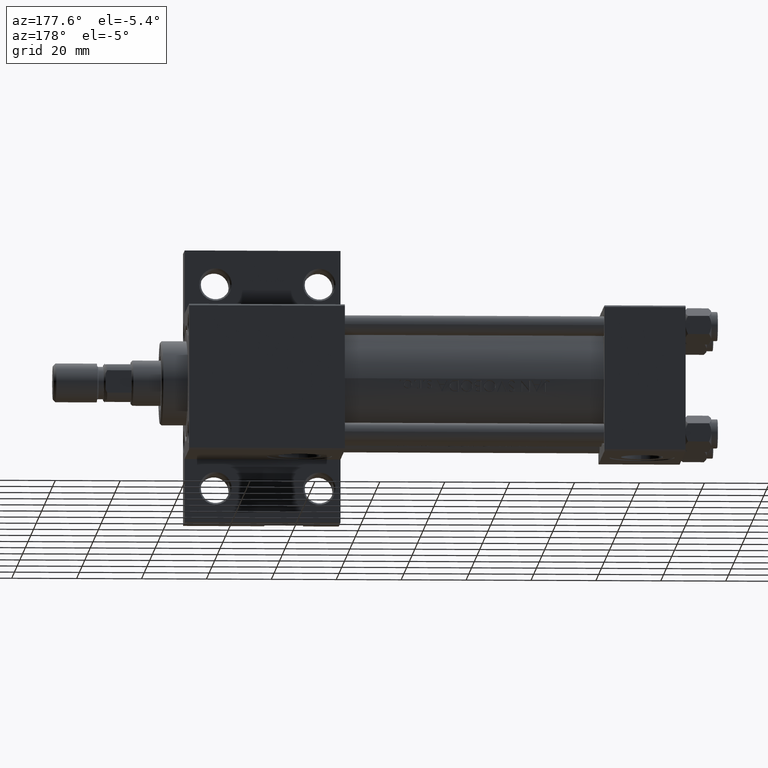
[diagram: clean part render]
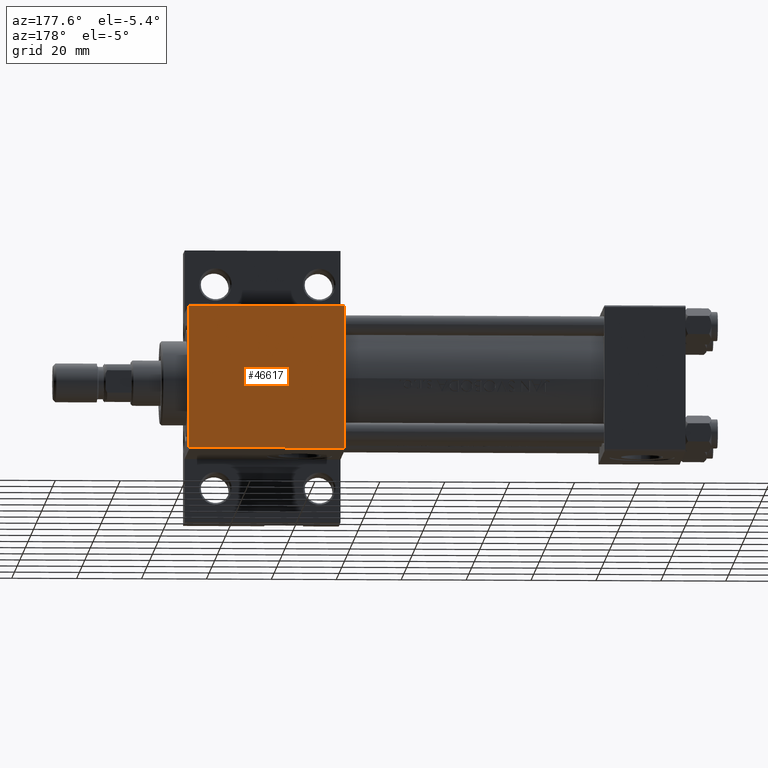
[diagram: same view with one face highlighted and labeled with its STEP entity id]
A machine part, auxiliary view. The second image highlights one B-rep face of the part: STEP entity #46617.
In plain terms, the highlighted planar face has unit normal (0, -1, -0).
Its self-contained STEP definition (entity closure, byte-faithful):
#446 = DIRECTION ( 'NONE',  ( 0.000000000000000000, -1.000000000000000000, -2.312964634635742957E-16 ) ) ;
#2039 = VERTEX_POINT ( 'NONE', #38056 ) ;
#3947 = EDGE_CURVE ( 'NONE', #42545, #2039, #11522, .T. ) ;
#6787 = CARTESIAN_POINT ( 'NONE',  ( 105.0000000000000142, 22.50000000000000355, 22.50000000000000355 ) ) ;
#10081 = ORIENTED_EDGE ( 'NONE', *, *, #3947, .T. ) ;
#10678 = LINE ( 'NONE', #6787, #11482 ) ;
#11425 = DIRECTION ( 'NONE',  ( 0.000000000000000000, 2.312964634635742957E-16, -1.000000000000000000 ) ) ;
#11482 = VECTOR ( 'NONE', #446, 1000.000000000000000 ) ;
#11522 = LINE ( 'NONE', #37107, #30030 ) ;
#12988 = EDGE_CURVE ( 'NONE', #42545, #32532, #45233, .T. ) ;
#13113 = VERTEX_POINT ( 'NONE', #17425 ) ;
#15379 = DIRECTION ( 'NONE',  ( 1.000000000000000000, 0.000000000000000000, 0.000000000000000000 ) ) ;
#17425 = CARTESIAN_POINT ( 'NONE',  ( 105.0000000000000142, -21.99999999999995381, 22.49999999999999289 ) ) ;
#17856 = VECTOR ( 'NONE', #47248, 1000.000000000000000 ) ;
#18262 = CARTESIAN_POINT ( 'NONE',  ( 153.0000000000000284, 22.50000000000000355, 22.50000000000000355 ) ) ;
#21968 = LINE ( 'NONE', #22690, #38298 ) ;
#22690 = CARTESIAN_POINT ( 'NONE',  ( 153.0000000000000284, -21.99999999999996803, 22.49999999999999289 ) ) ;
#23443 = AXIS2_PLACEMENT_3D ( 'NONE', #37735, #11425, #44314 ) ;
#24726 = EDGE_CURVE ( 'NONE', #13113, #32532, #21968, .T. ) ;
#29451 = PLANE ( 'NONE',  #23443 ) ;
#30030 = VECTOR ( 'NONE', #33704, 1000.000000000000000 ) ;
#31418 = CARTESIAN_POINT ( 'NONE',  ( 153.0000000000000284, -21.99999999999995381, 22.49999999999999289 ) ) ;
#32532 = VERTEX_POINT ( 'NONE', #31418 ) ;
#33704 = DIRECTION ( 'NONE',  ( -1.000000000000000000, 0.000000000000000000, 0.000000000000000000 ) ) ;
#34471 = EDGE_CURVE ( 'NONE', #2039, #13113, #10678, .T. ) ;
#37107 = CARTESIAN_POINT ( 'NONE',  ( 105.0000000000000142, 22.00000000000000355, 22.50000000000000355 ) ) ;
#37735 = CARTESIAN_POINT ( 'NONE',  ( 153.0000000000000284, 22.50000000000000355, 22.50000000000000355 ) ) ;
#38056 = CARTESIAN_POINT ( 'NONE',  ( 105.0000000000000142, 22.00000000000000355, 22.50000000000000355 ) ) ;
#38298 = VECTOR ( 'NONE', #15379, 1000.000000000000000 ) ;
#41147 = FACE_OUTER_BOUND ( 'NONE', #46498, .T. ) ;
#42540 = CARTESIAN_POINT ( 'NONE',  ( 153.0000000000000284, 22.00000000000000355, 22.50000000000000355 ) ) ;
#42545 = VERTEX_POINT ( 'NONE', #42540 ) ;
#42611 = ORIENTED_EDGE ( 'NONE', *, *, #34471, .T. ) ;
#43799 = ORIENTED_EDGE ( 'NONE', *, *, #24726, .T. ) ;
#44314 = DIRECTION ( 'NONE',  ( 0.000000000000000000, 1.000000000000000000, 2.312964634635742957E-16 ) ) ;
#45233 = LINE ( 'NONE', #18262, #17856 ) ;
#46498 = EDGE_LOOP ( 'NONE', ( #47706, #10081, #42611, #43799 ) ) ;
#46617 = ADVANCED_FACE ( 'NONE', ( #41147 ), #29451, .F. ) ;
#47248 = DIRECTION ( 'NONE',  ( 0.000000000000000000, -1.000000000000000000, -2.312964634635742957E-16 ) ) ;
#47706 = ORIENTED_EDGE ( 'NONE', *, *, #12988, .F. ) ;